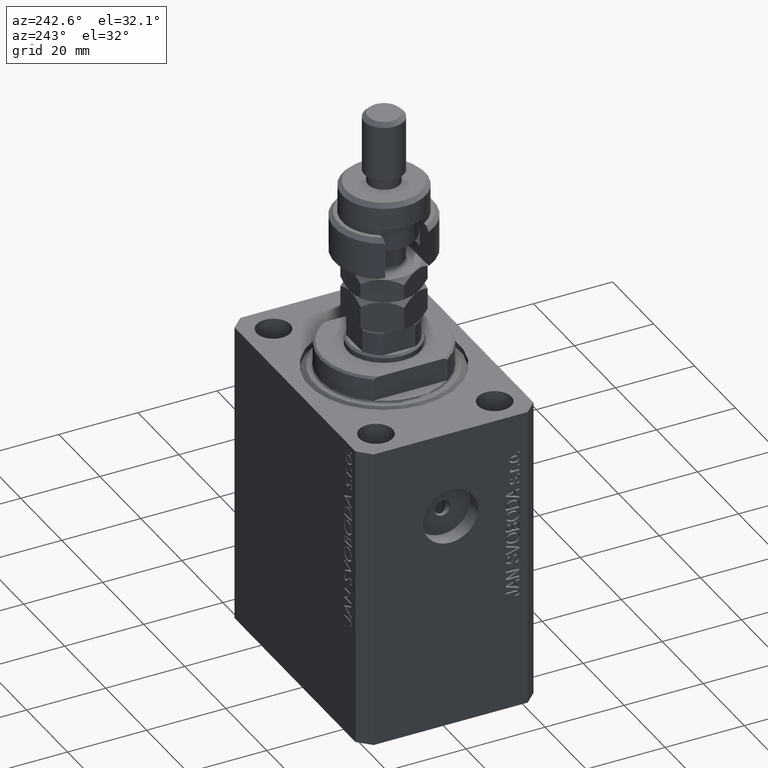
[diagram: clean part render]
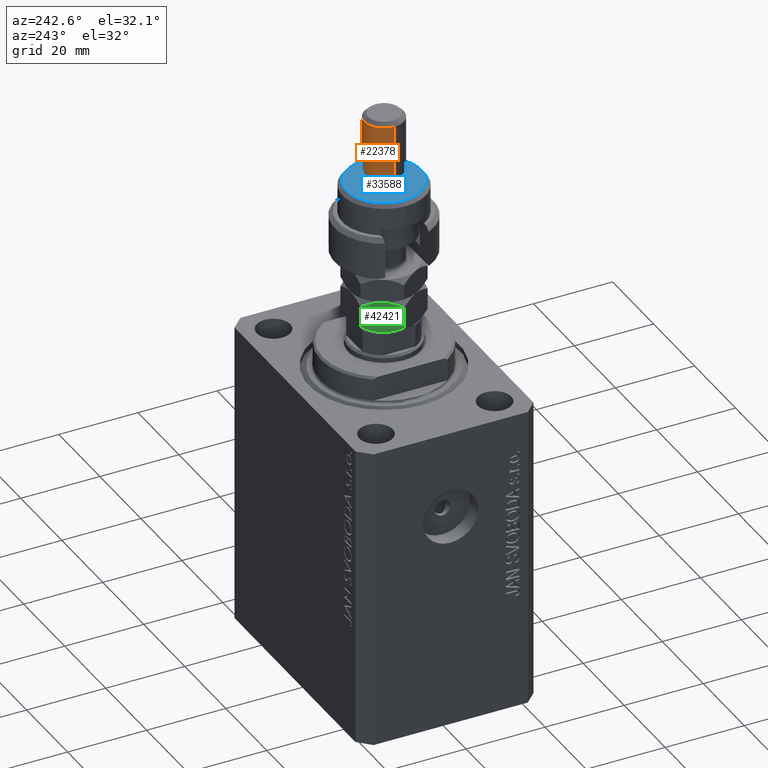
[diagram: same view with three faces highlighted in distinct colors, each labeled with its STEP entity id]
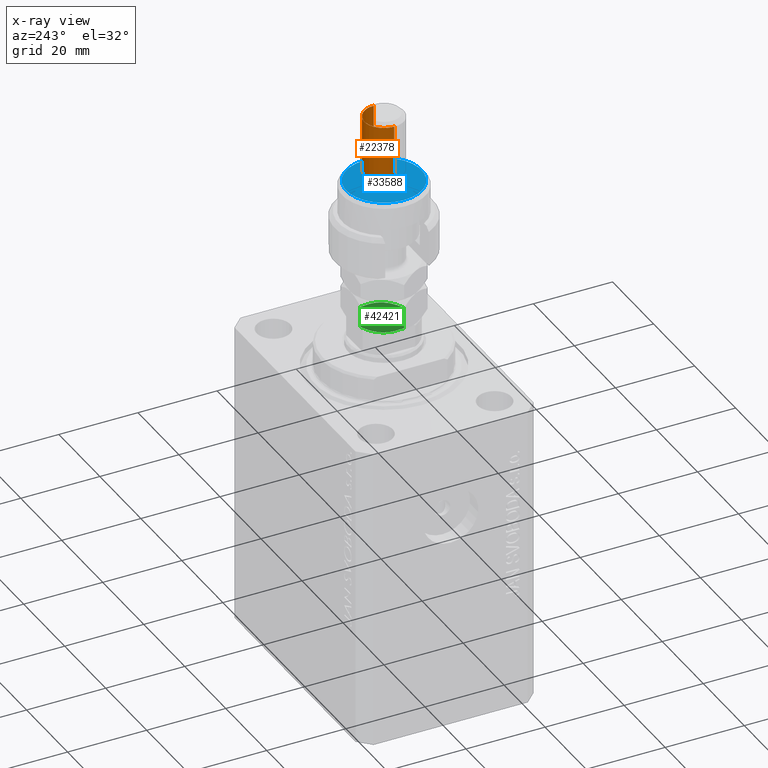
[diagram: x-ray of the same camera — body ghosted, the three highlighted faces saturated]
A machine part, auxiliary view with three faces highlighted in distinct colors.
The next image is the same camera in x-ray (body ghosted, the three faces saturated) — at least one of them is partly hidden behind the body in this view.
Their STEP definitions:

[orange] entity #22378 — the highlighted cylindrical surface (edge-blend (fillet) strip) has radius 5 mm, axis along (-0, -0, -1).
#1001 = VERTEX_POINT ( 'NONE', #38423 ) ;
#1346 = AXIS2_PLACEMENT_3D ( 'NONE', #11271, #33842, #22564 ) ;
#2281 = DIRECTION ( 'NONE',  ( 1.000000000000000000, 0.000000000000000000, 0.000000000000000000 ) ) ;
#2642 = CARTESIAN_POINT ( 'NONE',  ( 5.000000000000000888, 6.123233995736767268E-16, 21.99999999999999289 ) ) ;
#2759 = DIRECTION ( 'NONE',  ( 0.000000000000000000, 0.000000000000000000, -1.000000000000000000 ) ) ;
#5433 = EDGE_CURVE ( 'NONE', #1001, #35486, #7137, .T. ) ;
#6890 = CARTESIAN_POINT ( 'NONE',  ( 5.000000000000000888, 6.123233995736767268E-16, 37.00000000000000000 ) ) ;
#7137 = LINE ( 'NONE', #6890, #36258 ) ;
#7644 = EDGE_LOOP ( 'NONE', ( #45427, #21839, #33119, #27738 ) ) ;
#10406 = CARTESIAN_POINT ( 'NONE',  ( 0.000000000000000000, 0.000000000000000000, 37.00000000000000000 ) ) ;
#11271 = CARTESIAN_POINT ( 'NONE',  ( 0.000000000000000000, 0.000000000000000000, 21.99999999999999289 ) ) ;
#13335 = AXIS2_PLACEMENT_3D ( 'NONE', #14045, #2759, #2281 ) ;
#14045 = CARTESIAN_POINT ( 'NONE',  ( 0.000000000000000000, 0.000000000000000000, 36.00000000000000711 ) ) ;
#15984 = EDGE_CURVE ( 'NONE', #46573, #1001, #28678, .T. ) ;
#16678 = VERTEX_POINT ( 'NONE', #19242 ) ;
#17252 = DIRECTION ( 'NONE',  ( -0.000000000000000000, -0.000000000000000000, -1.000000000000000000 ) ) ;
#19242 = CARTESIAN_POINT ( 'NONE',  ( -5.000000000000000888, 0.000000000000000000, 21.99999999999999289 ) ) ;
#19420 = CARTESIAN_POINT ( 'NONE',  ( -5.000000000000000888, 0.000000000000000000, 36.00000000000000711 ) ) ;
#19782 = CIRCLE ( 'NONE', #1346, 5.000000000000000888 ) ;
#21839 = ORIENTED_EDGE ( 'NONE', *, *, #5433, .T. ) ;
#22378 = ADVANCED_FACE ( 'NONE', ( #35153 ), #46442, .T. ) ;
#22564 = DIRECTION ( 'NONE',  ( 1.000000000000000000, 0.000000000000000000, 0.000000000000000000 ) ) ;
#25633 = CARTESIAN_POINT ( 'NONE',  ( -5.000000000000000888, 0.000000000000000000, 37.00000000000000000 ) ) ;
#26967 = EDGE_CURVE ( 'NONE', #35486, #16678, #19782, .T. ) ;
#27738 = ORIENTED_EDGE ( 'NONE', *, *, #46932, .F. ) ;
#28676 = DIRECTION ( 'NONE',  ( -1.000000000000000000, 0.000000000000000000, 0.000000000000000000 ) ) ;
#28678 = CIRCLE ( 'NONE', #13335, 5.000000000000000888 ) ;
#29246 = VECTOR ( 'NONE', #36667, 1000.000000000000000 ) ;
#33119 = ORIENTED_EDGE ( 'NONE', *, *, #26967, .T. ) ;
#33842 = DIRECTION ( 'NONE',  ( -0.000000000000000000, -0.000000000000000000, 1.000000000000000000 ) ) ;
#35153 = FACE_OUTER_BOUND ( 'NONE', #7644, .T. ) ;
#35486 = VERTEX_POINT ( 'NONE', #2642 ) ;
#35634 = DIRECTION ( 'NONE',  ( -0.000000000000000000, -0.000000000000000000, -1.000000000000000000 ) ) ;
#36258 = VECTOR ( 'NONE', #17252, 1000.000000000000000 ) ;
#36667 = DIRECTION ( 'NONE',  ( -0.000000000000000000, -0.000000000000000000, -1.000000000000000000 ) ) ;
#37247 = AXIS2_PLACEMENT_3D ( 'NONE', #10406, #35634, #28676 ) ;
#38423 = CARTESIAN_POINT ( 'NONE',  ( 5.000000000000000888, 6.123233995736767268E-16, 36.00000000000000711 ) ) ;
#44093 = LINE ( 'NONE', #25633, #29246 ) ;
#45427 = ORIENTED_EDGE ( 'NONE', *, *, #15984, .T. ) ;
#46442 = CYLINDRICAL_SURFACE ( 'NONE', #37247, 5.000000000000000888 ) ;
#46573 = VERTEX_POINT ( 'NONE', #19420 ) ;
#46932 = EDGE_CURVE ( 'NONE', #46573, #16678, #44093, .T. ) ;

[blue] entity #33588 — the highlighted planar face has unit normal (0, 0, 1).
#28 = AXIS2_PLACEMENT_3D ( 'NONE', #44358, #33807, #4249 ) ;
#1177 = PLANE ( 'NONE',  #33687 ) ;
#2137 = ORIENTED_EDGE ( 'NONE', *, *, #44043, .F. ) ;
#2636 = CARTESIAN_POINT ( 'NONE',  ( -4.000000000000000000, 0.000000000000000000, 19.00000000000000000 ) ) ;
#4249 = DIRECTION ( 'NONE',  ( 1.000000000000000000, 0.000000000000000000, 0.000000000000000000 ) ) ;
#5251 = CARTESIAN_POINT ( 'NONE',  ( 0.000000000000000000, 0.000000000000000000, 19.00000000000000000 ) ) ;
#7342 = CARTESIAN_POINT ( 'NONE',  ( 0.000000000000000000, 0.000000000000000000, 19.00000000000000000 ) ) ;
#7626 = DIRECTION ( 'NONE',  ( 1.000000000000000000, 0.000000000000000000, 0.000000000000000000 ) ) ;
#7887 = EDGE_LOOP ( 'NONE', ( #45606, #16245 ) ) ;
#10335 = EDGE_CURVE ( 'NONE', #24311, #32533, #39506, .T. ) ;
#10947 = DIRECTION ( 'NONE',  ( 1.000000000000000000, 0.000000000000000000, 0.000000000000000000 ) ) ;
#11303 = AXIS2_PLACEMENT_3D ( 'NONE', #7342, #29213, #10947 ) ;
#11641 = ORIENTED_EDGE ( 'NONE', *, *, #26345, .F. ) ;
#14847 = VERTEX_POINT ( 'NONE', #2636 ) ;
#16245 = ORIENTED_EDGE ( 'NONE', *, *, #10335, .T. ) ;
#16265 = VERTEX_POINT ( 'NONE', #44762 ) ;
#21693 = CIRCLE ( 'NONE', #33170, 4.000000000000000000 ) ;
#23019 = EDGE_LOOP ( 'NONE', ( #11641, #2137 ) ) ;
#24311 = VERTEX_POINT ( 'NONE', #34970 ) ;
#25661 = DIRECTION ( 'NONE',  ( 0.000000000000000000, 0.000000000000000000, 1.000000000000000000 ) ) ;
#26345 = EDGE_CURVE ( 'NONE', #14847, #16265, #35091, .T. ) ;
#29213 = DIRECTION ( 'NONE',  ( 0.000000000000000000, 0.000000000000000000, 1.000000000000000000 ) ) ;
#29659 = CARTESIAN_POINT ( 'NONE',  ( 0.000000000000000000, 0.000000000000000000, 19.00000000000000000 ) ) ;
#32533 = VERTEX_POINT ( 'NONE', #32665 ) ;
#32622 = CARTESIAN_POINT ( 'NONE',  ( 0.000000000000000000, 0.000000000000000000, 19.00000000000000000 ) ) ;
#32665 = CARTESIAN_POINT ( 'NONE',  ( -9.500000000000001776, 0.000000000000000000, 19.00000000000000000 ) ) ;
#33170 = AXIS2_PLACEMENT_3D ( 'NONE', #29659, #39734, #44041 ) ;
#33375 = AXIS2_PLACEMENT_3D ( 'NONE', #32622, #25661, #7626 ) ;
#33588 = ADVANCED_FACE ( 'NONE', ( #37213, #37691 ), #1177, .T. ) ;
#33687 = AXIS2_PLACEMENT_3D ( 'NONE', #5251, #45142, #45375 ) ;
#33807 = DIRECTION ( 'NONE',  ( 0.000000000000000000, 0.000000000000000000, 1.000000000000000000 ) ) ;
#34581 = CIRCLE ( 'NONE', #28, 9.500000000000001776 ) ;
#34970 = CARTESIAN_POINT ( 'NONE',  ( 9.500000000000001776, 1.224646799147353256E-15, 19.00000000000000000 ) ) ;
#35091 = CIRCLE ( 'NONE', #11303, 4.000000000000000000 ) ;
#37213 = FACE_OUTER_BOUND ( 'NONE', #7887, .T. ) ;
#37691 = FACE_BOUND ( 'NONE', #23019, .T. ) ;
#38810 = EDGE_CURVE ( 'NONE', #32533, #24311, #34581, .T. ) ;
#39506 = CIRCLE ( 'NONE', #33375, 9.500000000000001776 ) ;
#39734 = DIRECTION ( 'NONE',  ( 0.000000000000000000, 0.000000000000000000, 1.000000000000000000 ) ) ;
#44041 = DIRECTION ( 'NONE',  ( 1.000000000000000000, 0.000000000000000000, 0.000000000000000000 ) ) ;
#44043 = EDGE_CURVE ( 'NONE', #16265, #14847, #21693, .T. ) ;
#44358 = CARTESIAN_POINT ( 'NONE',  ( 0.000000000000000000, 0.000000000000000000, 19.00000000000000000 ) ) ;
#44762 = CARTESIAN_POINT ( 'NONE',  ( 4.000000000000000000, 4.898587196589412829E-16, 19.00000000000000000 ) ) ;
#45142 = DIRECTION ( 'NONE',  ( 0.000000000000000000, 0.000000000000000000, 1.000000000000000000 ) ) ;
#45375 = DIRECTION ( 'NONE',  ( 1.000000000000000000, 0.000000000000000000, -0.000000000000000000 ) ) ;
#45606 = ORIENTED_EDGE ( 'NONE', *, *, #38810, .T. ) ;

[green] entity #42421 — the highlighted planar face has unit normal (0.866, -0.5, 0).
#1320 = CARTESIAN_POINT ( 'NONE',  ( -8.500000000000003553, 0.4250562772389694932, 8.000000000000005329 ) ) ;
#1411 = B_SPLINE_CURVE_WITH_KNOTS ( 'NONE', 3,
 ( #39098, #35745, #2828, #32379, #13875, #28320, #43641, #13647 ),
 .UNSPECIFIED., .F., .F.,
 ( 4, 2, 2, 4 ),
 ( 0.02112078995288570529, 0.02240296911910874544, 0.02368514828533178213, 0.02624950661777785896 ),
 .UNSPECIFIED. ) ;
#2300 = EDGE_CURVE ( 'NONE', #5998, #22597, #35535, .T. ) ;
#2828 = CARTESIAN_POINT ( 'NONE',  ( -8.500000000000003553, 0.8519727303832903553, 0.03214805330870153938 ) ) ;
#3311 = FACE_OUTER_BOUND ( 'NONE', #3620, .T. ) ;
#3620 = EDGE_LOOP ( 'NONE', ( #16153, #27999, #4232, #4136, #17703, #27385 ) ) ;
#4136 = ORIENTED_EDGE ( 'NONE', *, *, #14039, .F. ) ;
#4232 = ORIENTED_EDGE ( 'NONE', *, *, #26497, .F. ) ;
#4486 = CARTESIAN_POINT ( 'NONE',  ( -8.500000000000001776, 4.907477288111821601, 1.314954576223634097 ) ) ;
#4882 = B_SPLINE_CURVE_WITH_KNOTS ( 'NONE', 3,
 ( #38951, #20711, #47105, #35831, #46405, #21662, #17349, #13501 ),
 .UNSPECIFIED., .F., .F.,
 ( 4, 2, 2, 4 ),
 ( 0.01599723978826466178, 0.01855901487057518354, 0.01983990241173044441, 0.02112078995288570529 ),
 .UNSPECIFIED. ) ;
#5681 = VECTOR ( 'NONE', #39487, 1000.000000000000000 ) ;
#5998 = VERTEX_POINT ( 'NONE', #43285 ) ;
#7873 = CARTESIAN_POINT ( 'NONE',  ( -8.500000000000001776, 4.907477288111821601, 8.000000000000000000 ) ) ;
#10130 = AXIS2_PLACEMENT_3D ( 'NONE', #7873, #36227, #47512 ) ;
#11918 = CARTESIAN_POINT ( 'NONE',  ( -8.500000000000001776, 1.698611466173708173, 7.842106890605590408 ) ) ;
#13501 = CARTESIAN_POINT ( 'NONE',  ( -8.500000000000001776, -1.502314598737158637E-15, 0.000000000000000000 ) ) ;
#13647 = CARTESIAN_POINT ( 'NONE',  ( -8.500000000000001776, 4.907477288111821601, 1.314954576223634097 ) ) ;
#13875 = CARTESIAN_POINT ( 'NONE',  ( -8.500000000000001776, 2.123774520232882601, 0.2525122409469394702 ) ) ;
#13933 = VECTOR ( 'NONE', #44367, 1000.000000000000000 ) ;
#14039 = EDGE_CURVE ( 'NONE', #5998, #27685, #15885, .T. ) ;
#14287 = EDGE_CURVE ( 'NONE', #38843, #19736, #18345, .T. ) ;
#14837 = PLANE ( 'NONE',  #10130 ) ;
#15271 = CARTESIAN_POINT ( 'NONE',  ( -8.500000000000001776, 2.120344129356181995, 7.748361753394902074 ) ) ;
#15316 = CARTESIAN_POINT ( 'NONE',  ( -8.500000000000001776, 4.907477288111821601, 8.000000000000000000 ) ) ;
#15885 = B_SPLINE_CURVE_WITH_KNOTS ( 'NONE', 3,
 ( #40720, #19830, #29937, #15271, #11918, #27053, #1320, #33768 ),
 .UNSPECIFIED., .F., .F.,
 ( 4, 2, 2, 4 ),
 ( 0.01578235603560546041, 0.01834328451991702746, 0.01962374876207281446, 0.02090421300422859799 ),
 .UNSPECIFIED. ) ;
#16153 = ORIENTED_EDGE ( 'NONE', *, *, #30671, .F. ) ;
#16676 = CARTESIAN_POINT ( 'NONE',  ( -8.500000000000000000, -0.4256665909445839779, 8.000000000000001776 ) ) ;
#17158 = CARTESIAN_POINT ( 'NONE',  ( -8.500000000000001776, -4.140161075469500851, 7.068703530097532273 ) ) ;
#17349 = CARTESIAN_POINT ( 'NONE',  ( -8.500000000000001776, -0.4252082920830618229, -8.797848878814666846E-16 ) ) ;
#17703 = ORIENTED_EDGE ( 'NONE', *, *, #2300, .T. ) ;
#18345 = LINE ( 'NONE', #47409, #5681 ) ;
#18443 = CARTESIAN_POINT ( 'NONE',  ( -8.500000000000000000, -4.907477288111824265, 6.685045423776367457 ) ) ;
#19736 = VERTEX_POINT ( 'NONE', #38586 ) ;
#19830 = CARTESIAN_POINT ( 'NONE',  ( -8.500000000000003553, 4.139497883677782930, 7.069035125993385904 ) ) ;
#20523 = CARTESIAN_POINT ( 'NONE',  ( -8.500000000000000000, -1.704290491844014266, 7.841080917550289797 ) ) ;
#20711 = CARTESIAN_POINT ( 'NONE',  ( -8.500000000000001776, -4.139854994771650532, 0.9311434295535483407 ) ) ;
#21662 = CARTESIAN_POINT ( 'NONE',  ( -8.499999999999998224, -0.8497195448779558680, 0.03207620093399911332 ) ) ;
#21798 = EDGE_CURVE ( 'NONE', #30757, #22597, #1411, .T. ) ;
#22597 = VERTEX_POINT ( 'NONE', #4486 ) ;
#22853 = CARTESIAN_POINT ( 'NONE',  ( -8.500000000000001776, -1.502314598737158637E-15, 0.000000000000000000 ) ) ;
#26497 = EDGE_CURVE ( 'NONE', #27685, #38843, #29800, .T. ) ;
#27053 = CARTESIAN_POINT ( 'NONE',  ( -8.500000000000003553, 0.8497849549400458002, 7.967944758129794636 ) ) ;
#27385 = ORIENTED_EDGE ( 'NONE', *, *, #21798, .F. ) ;
#27685 = VERTEX_POINT ( 'NONE', #27713 ) ;
#27713 = CARTESIAN_POINT ( 'NONE',  ( -8.499999999999996447, -1.502314598737157848E-15, 8.000000000000000000 ) ) ;
#27999 = ORIENTED_EDGE ( 'NONE', *, *, #14287, .F. ) ;
#28320 = CARTESIAN_POINT ( 'NONE',  ( -8.500000000000001776, 3.352020480670828029, 0.6033098685796222105 ) ) ;
#29800 = B_SPLINE_CURVE_WITH_KNOTS ( 'NONE', 3,
 ( #38768, #16676, #38290, #20523, #31338, #45970, #17158, #35168 ),
 .UNSPECIFIED., .F., .F.,
 ( 4, 2, 2, 4 ),
 ( 0.02090421300422859799, 0.02218651579087455722, 0.02346881857752051298, 0.02603342415081242797 ),
 .UNSPECIFIED. ) ;
#29937 = CARTESIAN_POINT ( 'NONE',  ( -8.500000000000003553, 3.351438397892507748, 7.397066932847728538 ) ) ;
#30671 = EDGE_CURVE ( 'NONE', #19736, #30757, #4882, .T. ) ;
#30757 = VERTEX_POINT ( 'NONE', #22853 ) ;
#31338 = CARTESIAN_POINT ( 'NONE',  ( -8.500000000000000000, -2.124043526558857753, 7.747436326571863319 ) ) ;
#32379 = CARTESIAN_POINT ( 'NONE',  ( -8.500000000000003553, 1.706008309425099290, 0.1592238233048453577 ) ) ;
#33768 = CARTESIAN_POINT ( 'NONE',  ( -8.499999999999996447, -1.502314598737157848E-15, 8.000000000000000000 ) ) ;
#35168 = CARTESIAN_POINT ( 'NONE',  ( -8.500000000000000000, -4.907477288111824265, 6.685045423776367457 ) ) ;
#35535 = LINE ( 'NONE', #15316, #13933 ) ;
#35745 = CARTESIAN_POINT ( 'NONE',  ( -8.500000000000003553, 0.4256370648452535432, -8.499975625696900944E-16 ) ) ;
#35831 = CARTESIAN_POINT ( 'NONE',  ( -8.499999999999998224, -2.119956228269633591, 0.2515287342491187017 ) ) ;
#36227 = DIRECTION ( 'NONE',  ( 1.000000000000000000, 1.767428939690774316E-16, -0.000000000000000000 ) ) ;
#38290 = CARTESIAN_POINT ( 'NONE',  ( -8.500000000000000000, -0.8516617604573334388, 7.967848961132538044 ) ) ;
#38586 = CARTESIAN_POINT ( 'NONE',  ( -8.500000000000000000, -4.907477288111824265, 1.314954576223634763 ) ) ;
#38768 = CARTESIAN_POINT ( 'NONE',  ( -8.499999999999996447, -1.502314598737157848E-15, 8.000000000000000000 ) ) ;
#38843 = VERTEX_POINT ( 'NONE', #18443 ) ;
#38951 = CARTESIAN_POINT ( 'NONE',  ( -8.500000000000000000, -4.907477288111824265, 1.314954576223634763 ) ) ;
#39098 = CARTESIAN_POINT ( 'NONE',  ( -8.500000000000001776, -1.502314598737158637E-15, 0.000000000000000000 ) ) ;
#39487 = DIRECTION ( 'NONE',  ( -0.000000000000000000, -0.000000000000000000, -1.000000000000000000 ) ) ;
#40720 = CARTESIAN_POINT ( 'NONE',  ( -8.500000000000001776, 4.907477288111821601, 6.685045423776368345 ) ) ;
#42421 = ADVANCED_FACE ( 'NONE', ( #3311 ), #14837, .F. ) ;
#43285 = CARTESIAN_POINT ( 'NONE',  ( -8.500000000000001776, 4.907477288111821601, 6.685045423776368345 ) ) ;
#43641 = CARTESIAN_POINT ( 'NONE',  ( -8.500000000000001776, 4.139332188297095705, 0.9308820263162732589 ) ) ;
#44367 = DIRECTION ( 'NONE',  ( -0.000000000000000000, -0.000000000000000000, -1.000000000000000000 ) ) ;
#45970 = CARTESIAN_POINT ( 'NONE',  ( -8.500000000000001776, -3.353279637626481513, 7.396279653520236863 ) ) ;
#46405 = CARTESIAN_POINT ( 'NONE',  ( -8.500000000000000000, -1.697406582464703551, 0.1576838761756158558 ) ) ;
#47105 = CARTESIAN_POINT ( 'NONE',  ( -8.500000000000000000, -3.352131279506822104, 0.6031284304619860537 ) ) ;
#47409 = CARTESIAN_POINT ( 'NONE',  ( -8.500000000000000000, -4.907477288111824265, 8.000000000000000000 ) ) ;
#47512 = DIRECTION ( 'NONE',  ( -1.767428939690774316E-16, 1.000000000000000000, 0.000000000000000000 ) ) ;